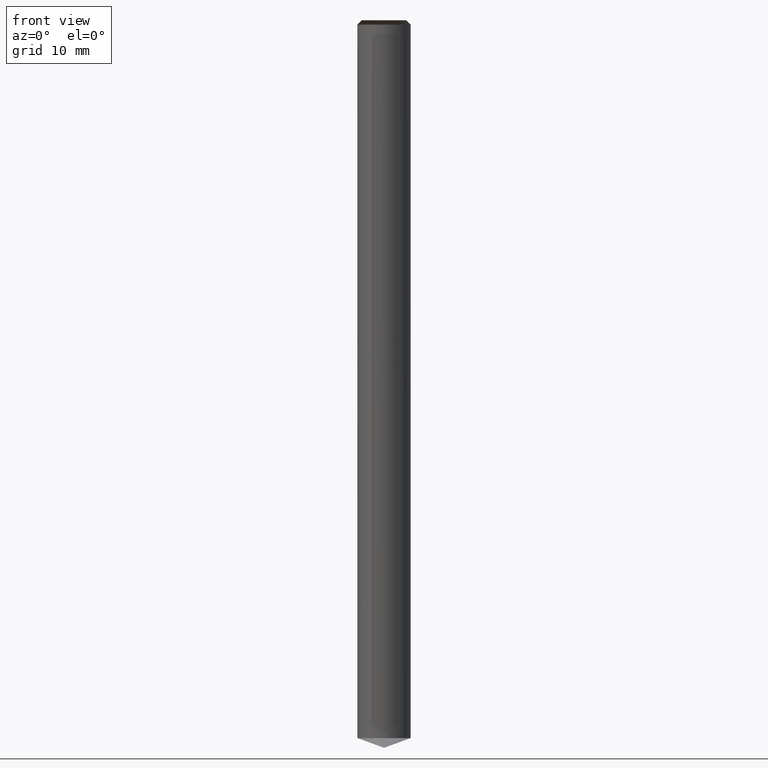
[diagram: clean part render]
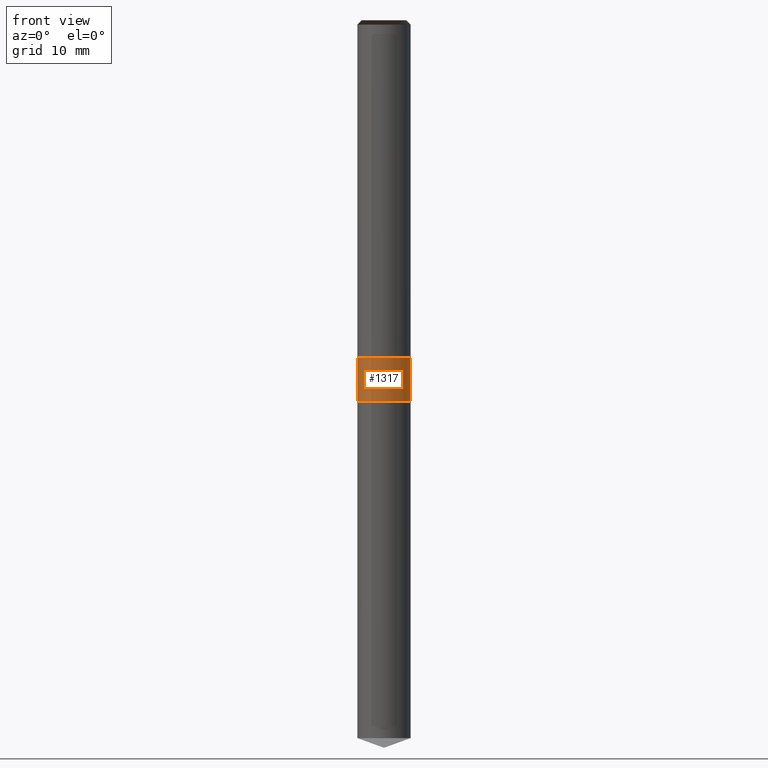
[diagram: same view with one face highlighted and labeled with its STEP entity id]
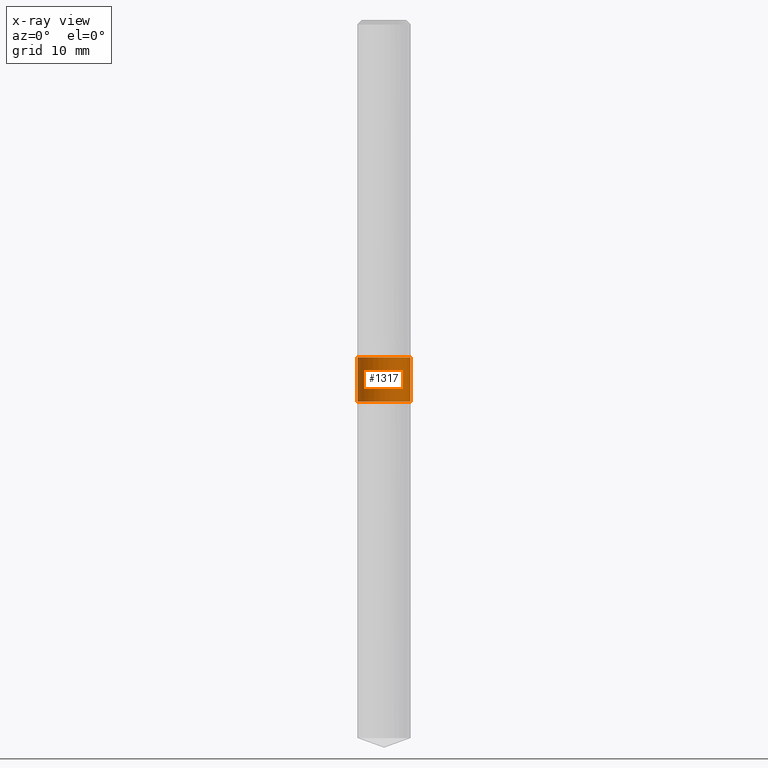
[diagram: x-ray of the same camera — body ghosted, the highlighted face saturated]
A machine part, front view. The second image highlights one B-rep face of the part: STEP entity #1317.
The next image is the same camera in x-ray: the body ghosted, the highlighted face saturated — about 0% of this face is hidden behind the body in this view.
In plain terms, the highlighted face is a freeform B-spline surface patch.
Its self-contained STEP definition (entity closure, byte-faithful):
#1012=CARTESIAN_POINT('',(3.0,0.0,-7.0));
#1016=CARTESIAN_POINT('',(-3.0,0.0,-7.0));
#1021=CARTESIAN_POINT('',(-3.0,-3.0,-7.0));
#1022=CARTESIAN_POINT('',(0.0,-3.0,-7.0));
#1023=CARTESIAN_POINT('',(3.0,-3.0,-7.0));
#1024=CARTESIAN_POINT('',(3.0,0.0,-2.0));
#1028=CARTESIAN_POINT('',(-3.0,0.0,-2.0));
#1045=CARTESIAN_POINT('',(-3.0,-3.0,-2.0));
#1046=CARTESIAN_POINT('',(0.0,-3.0,-2.0));
#1047=CARTESIAN_POINT('',(3.0,-3.0,-2.0));
#1298=(
BOUNDED_SURFACE()
B_SPLINE_SURFACE(1,2,(
(#1016,#1021,#1022,#1023,#1012),
(#1028,#1045,#1046,#1047,#1024)
), .UNSPECIFIED.,.F.,.F.,.F.)
B_SPLINE_SURFACE_WITH_KNOTS((2,2),(3,2,3),(
0.0,1.0),(
0.0,0.5,1.0), .UNSPECIFIED.)
GEOMETRIC_REPRESENTATION_ITEM()
RATIONAL_B_SPLINE_SURFACE(((1.0,0.707106781187,1.0,0.707106781187,1.0),
(1.0,0.707106781187,1.0,0.707106781187,1.0)
))
REPRESENTATION_ITEM('')
SURFACE()
);
#1299=(
BOUNDED_CURVE()
B_SPLINE_CURVE(2,(#1012,#1023,#1022,#1021,#1016),.UNSPECIFIED.,.F.,.F.)
B_SPLINE_CURVE_WITH_KNOTS((3,2,3),
(0.0,0.5,1.0),.UNSPECIFIED.)
CURVE()
GEOMETRIC_REPRESENTATION_ITEM()
RATIONAL_B_SPLINE_CURVE((1.0,0.707106781187,1.0,0.707106781187,1.0))
REPRESENTATION_ITEM('')
);
#1300=(
BOUNDED_CURVE()
B_SPLINE_CURVE(1,(#1016,#1028),.UNSPECIFIED.,.F.,.F.)
B_SPLINE_CURVE_WITH_KNOTS((2,2),
(0.0,1.0),.UNSPECIFIED.)
CURVE()
GEOMETRIC_REPRESENTATION_ITEM()
RATIONAL_B_SPLINE_CURVE((1.0,1.0))
REPRESENTATION_ITEM('')
);
#1301=(
BOUNDED_CURVE()
B_SPLINE_CURVE(2,(#1028,#1045,#1046,#1047,#1024),.UNSPECIFIED.,.F.,.F.)
B_SPLINE_CURVE_WITH_KNOTS((3,2,3),
(0.0,0.5,1.0),.UNSPECIFIED.)
CURVE()
GEOMETRIC_REPRESENTATION_ITEM()
RATIONAL_B_SPLINE_CURVE((1.0,0.707106781187,1.0,0.707106781187,1.0))
REPRESENTATION_ITEM('')
);
#1302=(
BOUNDED_CURVE()
B_SPLINE_CURVE(1,(#1024,#1012),.UNSPECIFIED.,.F.,.F.)
B_SPLINE_CURVE_WITH_KNOTS((2,2),
(0.0,1.0),.UNSPECIFIED.)
CURVE()
GEOMETRIC_REPRESENTATION_ITEM()
RATIONAL_B_SPLINE_CURVE((1.0,1.0))
REPRESENTATION_ITEM('')
);
#1303=VERTEX_POINT('',#1012);
#1304=VERTEX_POINT('',#1016);
#1305=VERTEX_POINT('',#1024);
#1306=VERTEX_POINT('',#1028);
#1307=EDGE_CURVE('',#1303,#1304,#1299,.T.);
#1308=EDGE_CURVE('',#1304,#1306,#1300,.T.);
#1309=EDGE_CURVE('',#1306,#1305,#1301,.T.);
#1310=EDGE_CURVE('',#1305,#1303,#1302,.T.);
#1311=ORIENTED_EDGE('',*,*,#1307,.T.);
#1312=ORIENTED_EDGE('',*,*,#1308,.T.);
#1313=ORIENTED_EDGE('',*,*,#1309,.T.);
#1314=ORIENTED_EDGE('',*,*,#1310,.T.);
#1315=EDGE_LOOP('',(#1311,#1312,#1313,#1314));
#1316=FACE_OUTER_BOUND('',#1315,.T.);
#1317=ADVANCED_FACE('',(#1316),#1298,.T.);